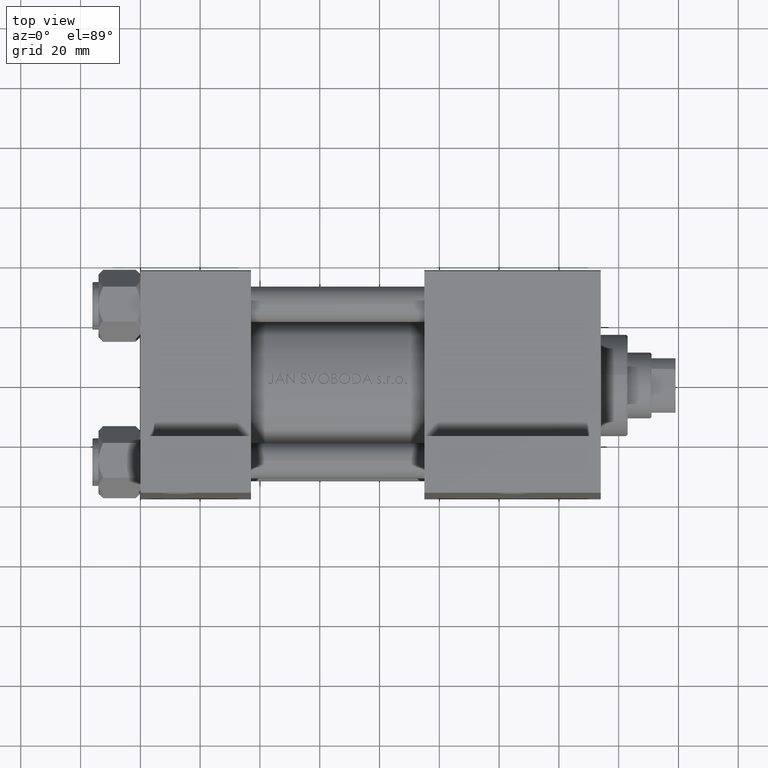
[diagram: clean part render]
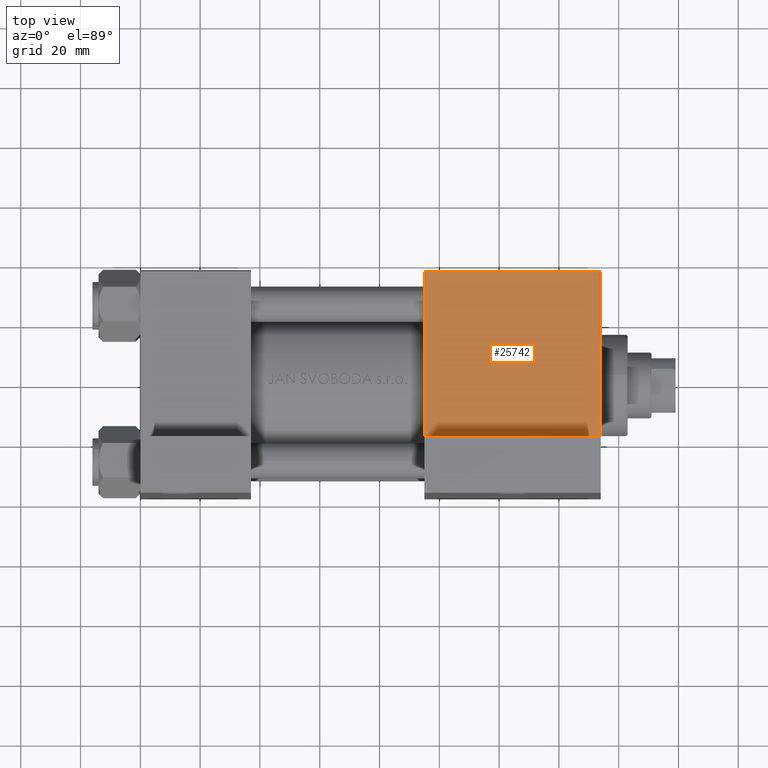
[diagram: same view with one face highlighted and labeled with its STEP entity id]
A machine part, top view. The second image highlights one B-rep face of the part: STEP entity #25742.
In plain terms, the highlighted planar face has unit normal (0, -0, -1).
Its self-contained STEP definition (entity closure, byte-faithful):
#1204 = DIRECTION ( 'NONE',  ( 0.000000000000000000, -9.251858538542972814E-17, -1.000000000000000000 ) ) ;
#4078 = DIRECTION ( 'NONE',  ( 1.000000000000000000, -1.176083712526648949E-16, 0.000000000000000000 ) ) ;
#4395 = CARTESIAN_POINT ( 'NONE',  ( 154.0000000000000000, -37.50000000000000000, 36.99999999999997868 ) ) ;
#4714 = CARTESIAN_POINT ( 'NONE',  ( 154.0000000000000000, -37.50000000000000000, 36.99999999999997868 ) ) ;
#5376 = EDGE_CURVE ( 'NONE', #19404, #10138, #25974, .T. ) ;
#8430 = PLANE ( 'NONE',  #29892 ) ;
#8666 = CARTESIAN_POINT ( 'NONE',  ( 154.0000000000000000, -37.50000000000000000, 37.49999999999997868 ) ) ;
#9521 = VECTOR ( 'NONE', #10021, 1000.000000000000000 ) ;
#10021 = DIRECTION ( 'NONE',  ( 0.000000000000000000, -9.251858538542972814E-17, -1.000000000000000000 ) ) ;
#10138 = VERTEX_POINT ( 'NONE', #44194 ) ;
#10461 = VERTEX_POINT ( 'NONE', #12613 ) ;
#10488 = CARTESIAN_POINT ( 'NONE',  ( 154.0000000000000000, -37.50000000000000000, 37.49999999999997868 ) ) ;
#11840 = LINE ( 'NONE', #4395, #31407 ) ;
#12322 = EDGE_CURVE ( 'NONE', #10461, #19404, #41831, .T. ) ;
#12613 = CARTESIAN_POINT ( 'NONE',  ( 95.00000000000000000, -37.50000000000000000, 36.99999999999997868 ) ) ;
#16767 = LINE ( 'NONE', #10488, #9521 ) ;
#18610 = ORIENTED_EDGE ( 'NONE', *, *, #41433, .F. ) ;
#19022 = FACE_OUTER_BOUND ( 'NONE', #29063, .T. ) ;
#19061 = DIRECTION ( 'NONE',  ( -1.000000000000000000, 0.000000000000000000, 0.000000000000000000 ) ) ;
#19404 = VERTEX_POINT ( 'NONE', #34322 ) ;
#22535 = ORIENTED_EDGE ( 'NONE', *, *, #5376, .T. ) ;
#24101 = EDGE_CURVE ( 'NONE', #43407, #10461, #11840, .T. ) ;
#25742 = ADVANCED_FACE ( 'NONE', ( #19022 ), #8430, .F. ) ;
#25974 = LINE ( 'NONE', #40629, #34177 ) ;
#27392 = ORIENTED_EDGE ( 'NONE', *, *, #24101, .T. ) ;
#29063 = EDGE_LOOP ( 'NONE', ( #18610, #27392, #46921, #22535 ) ) ;
#29892 = AXIS2_PLACEMENT_3D ( 'NONE', #8666, #37768, #34157 ) ;
#31232 = VECTOR ( 'NONE', #1204, 1000.000000000000000 ) ;
#31407 = VECTOR ( 'NONE', #19061, 1000.000000000000000 ) ;
#34157 = DIRECTION ( 'NONE',  ( 0.000000000000000000, 9.251858538542972814E-17, 1.000000000000000000 ) ) ;
#34177 = VECTOR ( 'NONE', #4078, 1000.000000000000000 ) ;
#34322 = CARTESIAN_POINT ( 'NONE',  ( 95.00000000000000000, -37.50000000000000000, -18.50000000000000000 ) ) ;
#34380 = CARTESIAN_POINT ( 'NONE',  ( 95.00000000000000000, -37.50000000000000000, 37.49999999999997868 ) ) ;
#37768 = DIRECTION ( 'NONE',  ( 0.000000000000000000, 1.000000000000000000, -9.251858538542972814E-17 ) ) ;
#40629 = CARTESIAN_POINT ( 'NONE',  ( 95.00000000000000000, -37.50000000000000000, -18.50000000000000000 ) ) ;
#41433 = EDGE_CURVE ( 'NONE', #43407, #10138, #16767, .T. ) ;
#41831 = LINE ( 'NONE', #34380, #31232 ) ;
#43407 = VERTEX_POINT ( 'NONE', #4714 ) ;
#44194 = CARTESIAN_POINT ( 'NONE',  ( 154.0000000000000000, -37.50000000000000711, -18.50000000000000355 ) ) ;
#46921 = ORIENTED_EDGE ( 'NONE', *, *, #12322, .T. ) ;